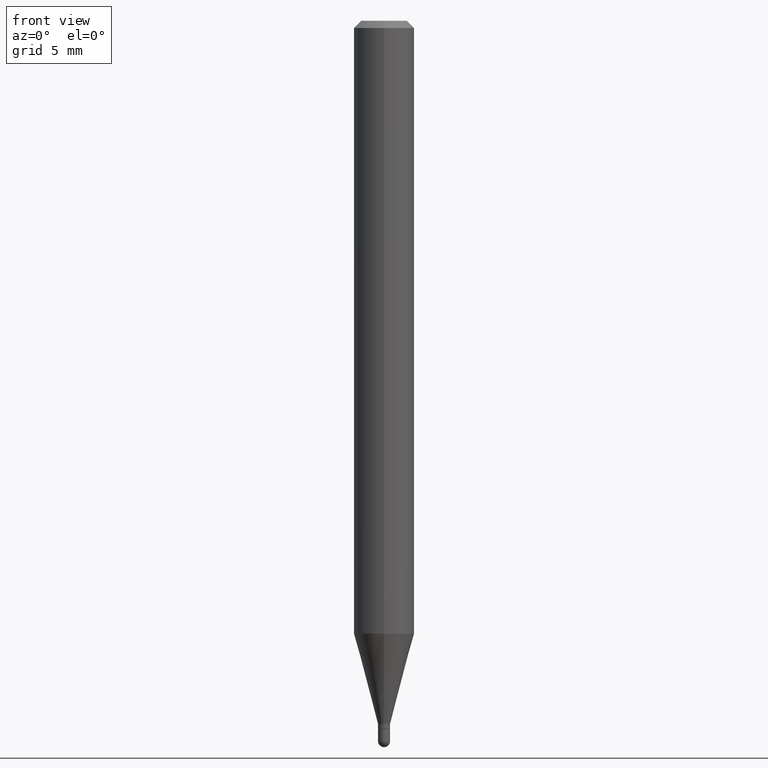
[diagram: clean part render]
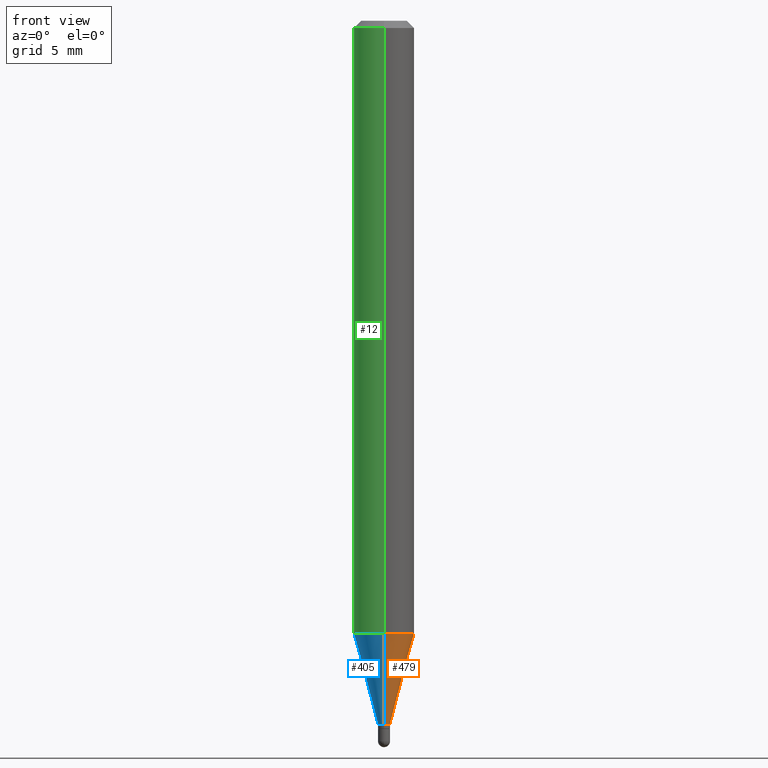
[diagram: same view with three faces highlighted in distinct colors, each labeled with its STEP entity id]
A machine part, front view with three faces highlighted in distinct colors.
Their STEP definitions:

[orange] entity #479 — the highlighted conical surface has half-angle 15 deg.
#38 = CARTESIAN_POINT ( 'NONE',  ( 4.440892098500933817E-16, 0.06249999999999557992, -1.265397459621557141 ) ) ;
#45 = DIRECTION ( 'NONE',  ( -6.982962677686265922E-15, -1.000000000000000000, 0.000000000000000000 ) ) ;
#49 = LINE ( 'NONE', #129, #78 ) ;
#53 = DIRECTION ( 'NONE',  ( 1.839019923739601893E-15, 0.2588190451025252359, 0.9659258262890670910 ) ) ;
#78 = VECTOR ( 'NONE', #53, 39.37007874015748854 ) ;
#83 = DIRECTION ( 'NONE',  ( -6.982962677686265922E-15, -1.000000000000000000, 4.370956789862821150E-15 ) ) ;
#88 = DIRECTION ( 'NONE',  ( -6.982962677686265922E-15, -1.000000000000000000, 0.000000000000000000 ) ) ;
#89 = AXIS2_PLACEMENT_3D ( 'NONE', #276, #236, #88 ) ;
#106 = ORIENTED_EDGE ( 'NONE', *, *, #303, .F. ) ;
#115 = ORIENTED_EDGE ( 'NONE', *, *, #335, .T. ) ;
#129 = CARTESIAN_POINT ( 'NONE',  ( 8.881784197004747224E-17, 0.01249999999999485550, -1.452000000000000179 ) ) ;
#157 = CARTESIAN_POINT ( 'NONE',  ( -8.728703347104229280E-17, -0.01250000000000499323, -1.452000000000000179 ) ) ;
#170 = CARTESIAN_POINT ( 'NONE',  ( 2.664535259100706427E-16, 0.01249999999999485724, -1.452000000000000179 ) ) ;
#204 = LINE ( 'NONE', #382, #421 ) ;
#217 = ORIENTED_EDGE ( 'NONE', *, *, #488, .F. ) ;
#219 = EDGE_CURVE ( 'NONE', #485, #367, #285, .T. ) ;
#236 = DIRECTION ( 'NONE',  ( -2.445467529516572820E-29, 3.491483167105192382E-15, 1.000000000000000000 ) ) ;
#262 = CONICAL_SURFACE ( 'NONE', #489, 0.01249999999999992437, 0.2617993877991505181 ) ;
#276 = CARTESIAN_POINT ( 'NONE',  ( 3.550818852858064068E-29, -5.069633558636740729E-15, -1.452000000000000179 ) ) ;
#284 = DIRECTION ( 'NONE',  ( -1.807323732225331717E-15, -0.2588190451025184080, 0.9659258262890689783 ) ) ;
#285 = CIRCLE ( 'NONE', #89, 0.01249999999999992437 ) ;
#300 = EDGE_LOOP ( 'NONE', ( #511, #115, #106, #217 ) ) ;
#301 = AXIS2_PLACEMENT_3D ( 'NONE', #472, #482, #83 ) ;
#303 = EDGE_CURVE ( 'NONE', #399, #334, #487, .T. ) ;
#325 = DIRECTION ( 'NONE',  ( -2.445467529516572820E-29, 3.491483167105192382E-15, 1.000000000000000000 ) ) ;
#334 = VERTEX_POINT ( 'NONE', #38 ) ;
#335 = EDGE_CURVE ( 'NONE', #367, #334, #49, .T. ) ;
#354 = CARTESIAN_POINT ( 'NONE',  ( 3.550818852858064068E-29, -5.069633558636740729E-15, -1.452000000000000179 ) ) ;
#367 = VERTEX_POINT ( 'NONE', #170 ) ;
#382 = CARTESIAN_POINT ( 'NONE',  ( -8.728703347104229280E-17, -0.01250000000000499323, -1.452000000000000179 ) ) ;
#399 = VERTEX_POINT ( 'NONE', #441 ) ;
#421 = VECTOR ( 'NONE', #284, 39.37007874015748854 ) ;
#441 = CARTESIAN_POINT ( 'NONE',  ( -4.364351673553607559E-16, -0.06250000000000442701, -1.265397459621556697 ) ) ;
#472 = CARTESIAN_POINT ( 'NONE',  ( 3.094488399437275627E-29, -4.418113929966338123E-15, -1.265397459621556919 ) ) ;
#477 = FACE_OUTER_BOUND ( 'NONE', #300, .T. ) ;
#479 = ADVANCED_FACE ( 'NONE', ( #477 ), #262, .T. ) ;
#482 = DIRECTION ( 'NONE',  ( -2.445467529516572820E-29, 3.491483167105192382E-15, 1.000000000000000000 ) ) ;
#485 = VERTEX_POINT ( 'NONE', #157 ) ;
#487 = CIRCLE ( 'NONE', #301, 0.06250000000000000000 ) ;
#488 = EDGE_CURVE ( 'NONE', #485, #399, #204, .T. ) ;
#489 = AXIS2_PLACEMENT_3D ( 'NONE', #354, #325, #45 ) ;
#511 = ORIENTED_EDGE ( 'NONE', *, *, #219, .T. ) ;

[blue] entity #405 — the highlighted conical surface has half-angle 15 deg.
#3 = DIRECTION ( 'NONE',  ( -2.445467529516572820E-29, 3.491483167105192382E-15, 1.000000000000000000 ) ) ;
#14 = DIRECTION ( 'NONE',  ( -6.982962677686265922E-15, -1.000000000000000000, 0.000000000000000000 ) ) ;
#27 = EDGE_LOOP ( 'NONE', ( #298, #494, #64, #107 ) ) ;
#38 = CARTESIAN_POINT ( 'NONE',  ( 4.440892098500933817E-16, 0.06249999999999557992, -1.265397459621557141 ) ) ;
#49 = LINE ( 'NONE', #129, #78 ) ;
#53 = DIRECTION ( 'NONE',  ( 1.839019923739601893E-15, 0.2588190451025252359, 0.9659258262890670910 ) ) ;
#59 = AXIS2_PLACEMENT_3D ( 'NONE', #196, #316, #237 ) ;
#64 = ORIENTED_EDGE ( 'NONE', *, *, #488, .T. ) ;
#78 = VECTOR ( 'NONE', #53, 39.37007874015748854 ) ;
#107 = ORIENTED_EDGE ( 'NONE', *, *, #252, .F. ) ;
#114 = DIRECTION ( 'NONE',  ( -2.445467529516572820E-29, 3.491483167105192382E-15, 1.000000000000000000 ) ) ;
#122 = AXIS2_PLACEMENT_3D ( 'NONE', #327, #3, #126 ) ;
#126 = DIRECTION ( 'NONE',  ( -6.982962677686265922E-15, -1.000000000000000000, 4.370956789862821150E-15 ) ) ;
#128 = CARTESIAN_POINT ( 'NONE',  ( 3.550818852858064068E-29, -5.069633558636740729E-15, -1.452000000000000179 ) ) ;
#129 = CARTESIAN_POINT ( 'NONE',  ( 8.881784197004747224E-17, 0.01249999999999485550, -1.452000000000000179 ) ) ;
#144 = CIRCLE ( 'NONE', #59, 0.01249999999999992437 ) ;
#157 = CARTESIAN_POINT ( 'NONE',  ( -8.728703347104229280E-17, -0.01250000000000499323, -1.452000000000000179 ) ) ;
#170 = CARTESIAN_POINT ( 'NONE',  ( 2.664535259100706427E-16, 0.01249999999999485724, -1.452000000000000179 ) ) ;
#193 = AXIS2_PLACEMENT_3D ( 'NONE', #128, #114, #14 ) ;
#196 = CARTESIAN_POINT ( 'NONE',  ( 3.550818852858064068E-29, -5.069633558636740729E-15, -1.452000000000000179 ) ) ;
#204 = LINE ( 'NONE', #382, #421 ) ;
#237 = DIRECTION ( 'NONE',  ( -6.982962677686265922E-15, -1.000000000000000000, 0.000000000000000000 ) ) ;
#252 = EDGE_CURVE ( 'NONE', #334, #399, #420, .T. ) ;
#284 = DIRECTION ( 'NONE',  ( -1.807323732225331717E-15, -0.2588190451025184080, 0.9659258262890689783 ) ) ;
#298 = ORIENTED_EDGE ( 'NONE', *, *, #335, .F. ) ;
#316 = DIRECTION ( 'NONE',  ( -2.445467529516572820E-29, 3.491483167105192382E-15, 1.000000000000000000 ) ) ;
#327 = CARTESIAN_POINT ( 'NONE',  ( 3.094488399437275627E-29, -4.418113929966338123E-15, -1.265397459621556919 ) ) ;
#334 = VERTEX_POINT ( 'NONE', #38 ) ;
#335 = EDGE_CURVE ( 'NONE', #367, #334, #49, .T. ) ;
#357 = FACE_OUTER_BOUND ( 'NONE', #27, .T. ) ;
#367 = VERTEX_POINT ( 'NONE', #170 ) ;
#382 = CARTESIAN_POINT ( 'NONE',  ( -8.728703347104229280E-17, -0.01250000000000499323, -1.452000000000000179 ) ) ;
#399 = VERTEX_POINT ( 'NONE', #441 ) ;
#405 = ADVANCED_FACE ( 'NONE', ( #357 ), #406, .T. ) ;
#406 = CONICAL_SURFACE ( 'NONE', #193, 0.01249999999999992437, 0.2617993877991505181 ) ;
#420 = CIRCLE ( 'NONE', #122, 0.06250000000000000000 ) ;
#421 = VECTOR ( 'NONE', #284, 39.37007874015748854 ) ;
#441 = CARTESIAN_POINT ( 'NONE',  ( -4.364351673553607559E-16, -0.06250000000000442701, -1.265397459621556697 ) ) ;
#485 = VERTEX_POINT ( 'NONE', #157 ) ;
#488 = EDGE_CURVE ( 'NONE', #485, #399, #204, .T. ) ;
#494 = ORIENTED_EDGE ( 'NONE', *, *, #499, .T. ) ;
#499 = EDGE_CURVE ( 'NONE', #367, #485, #144, .T. ) ;

[green] entity #12 — the highlighted cylindrical surface (edge-blend (fillet) strip) has radius 1.5875 mm, axis along (-0, 0, 1).
#3 = DIRECTION ( 'NONE',  ( -2.445467529516572820E-29, 3.491483167105192382E-15, 1.000000000000000000 ) ) ;
#12 = ADVANCED_FACE ( 'NONE', ( #439 ), #205, .T. ) ;
#33 = VECTOR ( 'NONE', #209, 39.37007874015748143 ) ;
#35 = DIRECTION ( 'NONE',  ( -2.445467529516572820E-29, 3.491483167105192382E-15, 1.000000000000000000 ) ) ;
#36 = CARTESIAN_POINT ( 'NONE',  ( 4.440892098500936776E-16, 0.06249999999999993755, -0.01500000000000022669 ) ) ;
#38 = CARTESIAN_POINT ( 'NONE',  ( 4.440892098500933817E-16, 0.06249999999999557992, -1.265397459621557141 ) ) ;
#42 = CARTESIAN_POINT ( 'NONE',  ( 3.668201294274861525E-31, -5.237224750657791359E-17, -0.01500000000000000812 ) ) ;
#47 = CARTESIAN_POINT ( 'NONE',  ( 4.440892098500625669E-16, 0.06250000000000000000, -2.182176979440745239E-16 ) ) ;
#103 = AXIS2_PLACEMENT_3D ( 'NONE', #42, #35, #125 ) ;
#122 = AXIS2_PLACEMENT_3D ( 'NONE', #327, #3, #126 ) ;
#125 = DIRECTION ( 'NONE',  ( -6.982962677686265922E-15, -1.000000000000000000, 3.483106191921935554E-15 ) ) ;
#126 = DIRECTION ( 'NONE',  ( -6.982962677686265922E-15, -1.000000000000000000, 4.370956789862821150E-15 ) ) ;
#140 = VERTEX_POINT ( 'NONE', #36 ) ;
#143 = ORIENTED_EDGE ( 'NONE', *, *, #342, .F. ) ;
#146 = ORIENTED_EDGE ( 'NONE', *, *, #484, .F. ) ;
#156 = EDGE_CURVE ( 'NONE', #399, #447, #233, .T. ) ;
#167 = CIRCLE ( 'NONE', #103, 0.06250000000000000000 ) ;
#191 = EDGE_LOOP ( 'NONE', ( #143, #330, #220, #146 ) ) ;
#205 = CYLINDRICAL_SURFACE ( 'NONE', #428, 0.06250000000000000000 ) ;
#209 = DIRECTION ( 'NONE',  ( -2.445467529516572820E-29, 3.491483167105192382E-15, 1.000000000000000000 ) ) ;
#220 = ORIENTED_EDGE ( 'NONE', *, *, #156, .T. ) ;
#233 = LINE ( 'NONE', #505, #253 ) ;
#246 = LINE ( 'NONE', #47, #33 ) ;
#252 = EDGE_CURVE ( 'NONE', #334, #399, #420, .T. ) ;
#253 = VECTOR ( 'NONE', #346, 39.37007874015748143 ) ;
#282 = DIRECTION ( 'NONE',  ( -2.445467529516572820E-29, 3.491483167105192382E-15, 1.000000000000000000 ) ) ;
#318 = CARTESIAN_POINT ( 'NONE',  ( 0.000000000000000000, 0.000000000000000000, 0.000000000000000000 ) ) ;
#327 = CARTESIAN_POINT ( 'NONE',  ( 3.094488399437275627E-29, -4.418113929966338123E-15, -1.265397459621556919 ) ) ;
#330 = ORIENTED_EDGE ( 'NONE', *, *, #252, .T. ) ;
#334 = VERTEX_POINT ( 'NONE', #38 ) ;
#342 = EDGE_CURVE ( 'NONE', #334, #140, #246, .T. ) ;
#346 = DIRECTION ( 'NONE',  ( -2.445467529516572820E-29, 3.491483167105192382E-15, 1.000000000000000000 ) ) ;
#399 = VERTEX_POINT ( 'NONE', #441 ) ;
#420 = CIRCLE ( 'NONE', #122, 0.06250000000000000000 ) ;
#427 = CARTESIAN_POINT ( 'NONE',  ( -4.364351673553912750E-16, -0.06250000000000005551, -0.01499999999999979128 ) ) ;
#428 = AXIS2_PLACEMENT_3D ( 'NONE', #318, #282, #473 ) ;
#439 = FACE_OUTER_BOUND ( 'NONE', #191, .T. ) ;
#441 = CARTESIAN_POINT ( 'NONE',  ( -4.364351673553607559E-16, -0.06250000000000442701, -1.265397459621556697 ) ) ;
#447 = VERTEX_POINT ( 'NONE', #427 ) ;
#473 = DIRECTION ( 'NONE',  ( -6.982962677686265922E-15, -1.000000000000000000, 3.491483167105192382E-15 ) ) ;
#484 = EDGE_CURVE ( 'NONE', #140, #447, #167, .T. ) ;
#505 = CARTESIAN_POINT ( 'NONE',  ( -4.364351673553916201E-16, -0.06250000000000000000, 2.182176979440745239E-16 ) ) ;